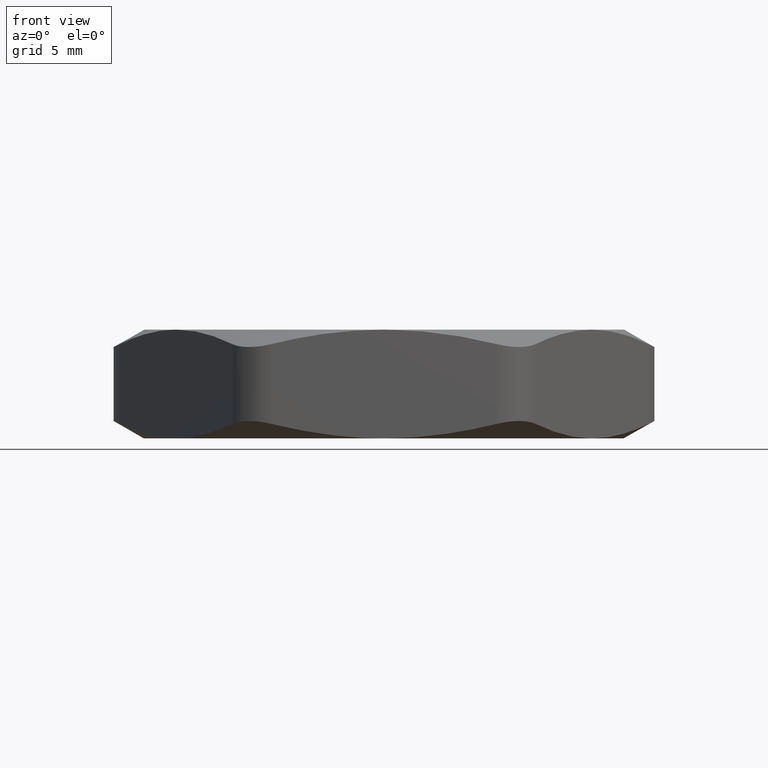
[diagram: clean part render]
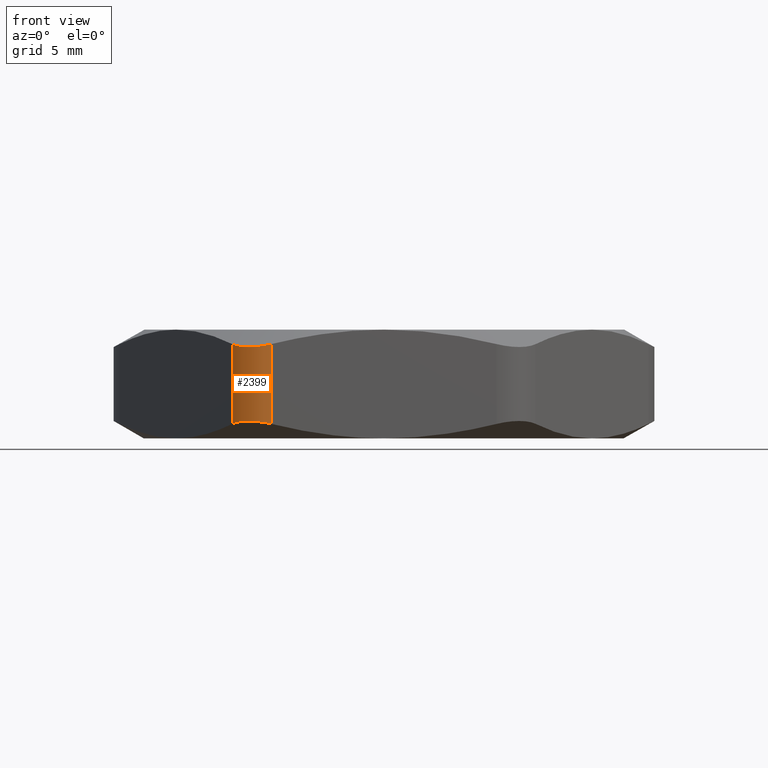
[diagram: same view with one face highlighted and labeled with its STEP entity id]
A machine part, front view. The second image highlights one B-rep face of the part: STEP entity #2399.
In plain terms, the highlighted cylindrical surface (partial cylindrical patch) has radius 2.54 mm, axis along (0, 0, -1).
Its self-contained STEP definition (entity closure, byte-faithful):
#1343 = CARTESIAN_POINT ( 'NONE',  ( -0.3348631561299834100, -0.4799999999999998200, 0.2399999999999999900 ) ) ;
#1556 = CARTESIAN_POINT ( 'NONE',  ( -0.2482606157515394900, -0.5299999999999999200, 0.03190638126214311700 ) ) ;
#1558 = DIRECTION ( 'NONE',  ( 0.0000000000000000000, 0.0000000000000000000, -1.000000000000000000 ) ) ;
#1559 = VECTOR ( 'NONE', #1558, 39.37007874015748100 ) ;
#1560 = CARTESIAN_POINT ( 'NONE',  ( -0.2482606157515395400, -0.5299999999999999200, 0.2399999999999999900 ) ) ;
#1561 = LINE ( 'NONE', #1560, #1559 ) ;
#1567 = CARTESIAN_POINT ( 'NONE',  ( -0.2482606157515395400, -0.5299999999999999200, 0.2080936187378568700 ) ) ;
#1581 = DIRECTION ( 'NONE',  ( 0.0000000000000000000, 0.0000000000000000000, 1.000000000000000000 ) ) ;
#1582 = VECTOR ( 'NONE', #1581, 39.37007874015748100 ) ;
#1625 = B_SPLINE_CURVE_WITH_KNOTS ( 'NONE', 3,
 ( #1677, #1676, #1675, #1674, #1673, #1672, #1671, #1670, #1669, #1668 ),
 .UNSPECIFIED., .F., .F.,
 ( 4, 2, 2, 2, 4 ),
 ( 5.890401654755921800E-017, 0.0006680279323234616700, 0.001336055864646864600, 0.002004083796970267400, 0.002672111729293670200 ),
 .UNSPECIFIED. ) ;
#1668 = CARTESIAN_POINT ( 'NONE',  ( -0.2482606157515395400, -0.5299999999999999200, 0.2080936187378568700 ) ) ;
#1669 = CARTESIAN_POINT ( 'NONE',  ( -0.2568942740270174200, -0.5300000000000003600, 0.2059792017689843200 ) ) ;
#1670 = CARTESIAN_POINT ( 'NONE',  ( -0.2656273913978813300, -0.5288641547770680500, 0.2043413060484491900 ) ) ;
#1671 = CARTESIAN_POINT ( 'NONE',  ( -0.2824434795543783700, -0.5243782698420087500, 0.2021571432969626600 ) ) ;
#1672 = CARTESIAN_POINT ( 'NONE',  ( -0.2907320853714597300, -0.5209573296659988400, 0.2015905404625055200 ) ) ;
#1673 = CARTESIAN_POINT ( 'NONE',  ( -0.3059297120955538600, -0.5121665192064858200, 0.2015973893732997100 ) ) ;
#1674 = CARTESIAN_POINT ( 'NONE',  ( -0.3129680990160885700, -0.5067437669688869000, 0.2021617336542260200 ) ) ;
#1675 = CARTESIAN_POINT ( 'NONE',  ( -0.3253203252401624700, -0.4943309049566053700, 0.2043704327233741300 ) ) ;
#1676 = CARTESIAN_POINT ( 'NONE',  ( -0.3305474258513027000, -0.4874750641144380800, 0.2059797399990211700 ) ) ;
#1677 = CARTESIAN_POINT ( 'NONE',  ( -0.3348631561299994000, -0.4799999999999722300, 0.2080936187378646900 ) ) ;
#1718 = DIRECTION ( 'NONE',  ( -1.000000000000000000, 0.0000000000000000000, 0.0000000000000000000 ) ) ;
#1719 = DIRECTION ( 'NONE',  ( 0.0000000000000000000, 0.0000000000000000000, -1.000000000000000000 ) ) ;
#1720 = CARTESIAN_POINT ( 'NONE',  ( -0.2482606157515395700, -0.4299999999999999400, 0.2399999999999999900 ) ) ;
#1721 = AXIS2_PLACEMENT_3D ( 'NONE', #1720, #1719, #1718 ) ;
#1723 = CYLINDRICAL_SURFACE ( 'NONE', #1721, 0.09999999999999999200 ) ;
#1724 = FACE_OUTER_BOUND ( 'NONE', #2397, .T. ) ;
#1729 = CARTESIAN_POINT ( 'NONE',  ( -0.3348631561299834100, -0.4799999999999998700, 0.03190638126214307600 ) ) ;
#1730 = CARTESIAN_POINT ( 'NONE',  ( -0.3305463269922466800, -0.4874769673941544700, 0.03402079823101473300 ) ) ;
#1731 = CARTESIAN_POINT ( 'NONE',  ( -0.3251960974889909200, -0.4944721462800847900, 0.03565869395154953900 ) ) ;
#1732 = CARTESIAN_POINT ( 'NONE',  ( -0.3129031630985339400, -0.5067923633483560900, 0.03784285670303595700 ) ) ;
#1733 = CARTESIAN_POINT ( 'NONE',  ( -0.3057962390927465600, -0.5122600364598974800, 0.03840945953749356400 ) ) ;
#1734 = CARTESIAN_POINT ( 'NONE',  ( -0.2905843605529151400, -0.5210261620504399400, 0.03840261062670124300 ) ) ;
#1735 = CARTESIAN_POINT ( 'NONE',  ( -0.2823689258964639500, -0.5244102078064883900, 0.03783826634577653500 ) ) ;
#1736 = CARTESIAN_POINT ( 'NONE',  ( -0.2654429589481263600, -0.5289011185036923700, 0.03562956727663185700 ) ) ;
#1737 = CARTESIAN_POINT ( 'NONE',  ( -0.2568920763089047000, -0.5299999999999998000, 0.03402026000118037200 ) ) ;
#1738 = CARTESIAN_POINT ( 'NONE',  ( -0.2482606157515394900, -0.5299999999999999200, 0.03190638126214311700 ) ) ;
#1740 = B_SPLINE_CURVE_WITH_KNOTS ( 'NONE', 3,
 ( #1738, #1737, #1736, #1735, #1734, #1733, #1732, #1731, #1730, #1729 ),
 .UNSPECIFIED., .F., .F.,
 ( 4, 2, 2, 2, 4 ),
 ( 8.940560153363745000E-019, 0.0006680279323233932600, 0.001336055864646785600, 0.002004083796970178000, 0.002672111729293570400 ),
 .UNSPECIFIED. ) ;
#1840 = LINE ( 'NONE', #1343, #1582 ) ;
#1844 = CARTESIAN_POINT ( 'NONE',  ( -0.3348631561299994000, -0.4799999999999722300, 0.2080936187378646900 ) ) ;
#1931 = CARTESIAN_POINT ( 'NONE',  ( -0.3348631561299834100, -0.4799999999999998700, 0.03190638126214307600 ) ) ;
#2292 = VERTEX_POINT ( 'NONE', #1567 ) ;
#2298 = EDGE_CURVE ( 'NONE', #2292, #2301, #1561, .T. ) ;
#2301 = VERTEX_POINT ( 'NONE', #1556 ) ;
#2331 = EDGE_CURVE ( 'NONE', #2492, #2292, #1625, .T. ) ;
#2391 = EDGE_CURVE ( 'NONE', #2301, #2494, #1740, .T. ) ;
#2395 = ORIENTED_EDGE ( 'NONE', *, *, #2391, .F. ) ;
#2396 = ORIENTED_EDGE ( 'NONE', *, *, #2331, .F. ) ;
#2397 = EDGE_LOOP ( 'NONE', ( #2396, #2398, #2395, #2451 ) ) ;
#2398 = ORIENTED_EDGE ( 'NONE', *, *, #2493, .F. ) ;
#2399 = ADVANCED_FACE ( 'NONE', ( #1724 ), #1723, .T. ) ;
#2451 = ORIENTED_EDGE ( 'NONE', *, *, #2298, .F. ) ;
#2492 = VERTEX_POINT ( 'NONE', #1844 ) ;
#2493 = EDGE_CURVE ( 'NONE', #2494, #2492, #1840, .T. ) ;
#2494 = VERTEX_POINT ( 'NONE', #1931 ) ;